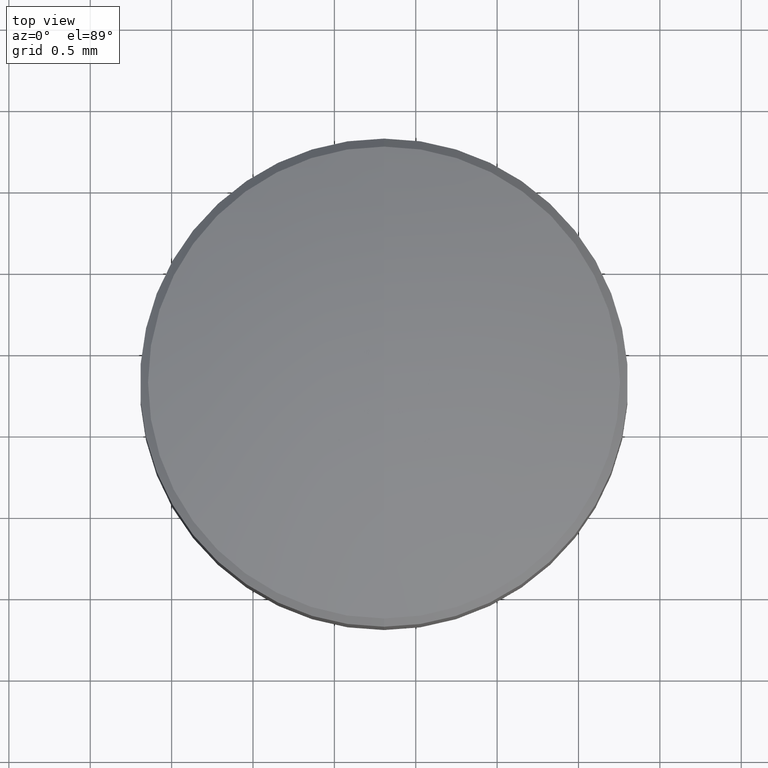
[diagram: clean part render]
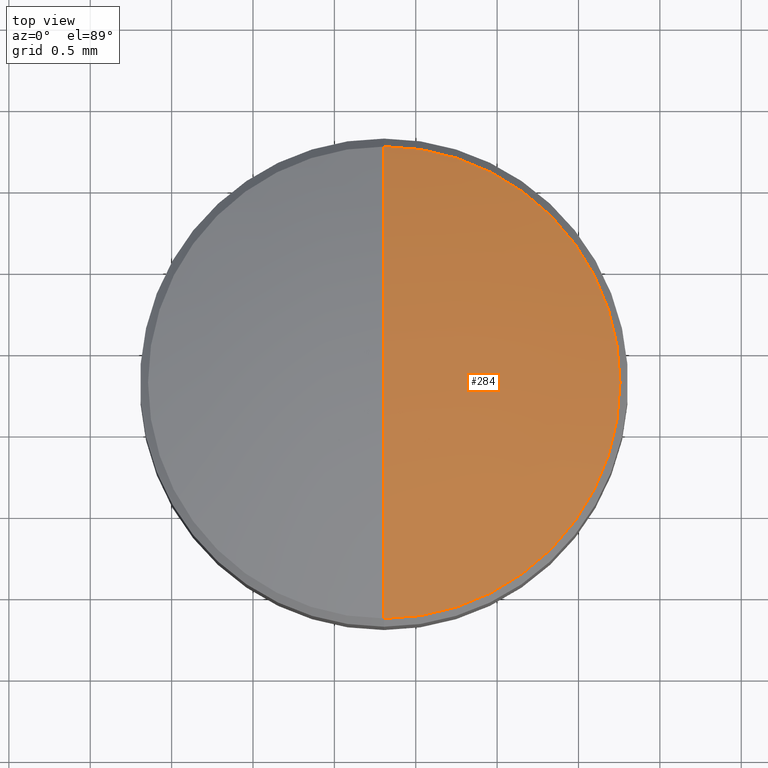
[diagram: same view with one face highlighted and labeled with its STEP entity id]
A machine part, top view. The second image highlights one B-rep face of the part: STEP entity #284.
In plain terms, the highlighted spherical surface has radius 4.651 mm.
Its self-contained STEP definition (entity closure, byte-faithful):
#8 = DIRECTION ( 'NONE',  ( 0.0000000000000000000, 1.000000000000000000, 1.398669755947758989E-16 ) ) ;
#17 = EDGE_LOOP ( 'NONE', ( #74, #31, #288 ) ) ;
#31 = ORIENTED_EDGE ( 'NONE', *, *, #57, .T. ) ;
#41 = EDGE_CURVE ( 'NONE', #237, #281, #159, .T. ) ;
#44 = DIRECTION ( 'NONE',  ( 1.000000000000000000, 1.224646799147353207E-16, 1.499759782661857608E-32 ) ) ;
#57 = EDGE_CURVE ( 'NONE', #237, #87, #93, .T. ) ;
#59 = DIRECTION ( 'NONE',  ( 0.0000000000000000000, 1.000000000000000000, 0.0000000000000000000 ) ) ;
#60 = CARTESIAN_POINT ( 'NONE',  ( 0.8048939134659998107, 1.311868098657955839, -1.259704012957080899 ) ) ;
#62 = DIRECTION ( 'NONE',  ( -0.0000000000000000000, 1.224646799147353207E-16, -1.000000000000000000 ) ) ;
#72 = AXIS2_PLACEMENT_3D ( 'NONE', #263, #44, #140 ) ;
#74 = ORIENTED_EDGE ( 'NONE', *, *, #41, .F. ) ;
#87 = VERTEX_POINT ( 'NONE', #144 ) ;
#93 = CIRCLE ( 'NONE', #72, 4.650999999999999801 ) ;
#133 = DIRECTION ( 'NONE',  ( 1.000000000000000000, 0.0000000000000000000, -0.0000000000000000000 ) ) ;
#140 = DIRECTION ( 'NONE',  ( -1.165558129956465865E-16, 1.000000000000000000, 0.0000000000000000000 ) ) ;
#144 = CARTESIAN_POINT ( 'NONE',  ( 0.8048939134660000327, -0.1381319013420453656, 3.159492859778958884 ) ) ;
#145 = FACE_OUTER_BOUND ( 'NONE', #17, .T. ) ;
#156 = DIRECTION ( 'NONE',  ( -1.000000000000000000, 0.0000000000000000000, 0.0000000000000000000 ) ) ;
#159 = CIRCLE ( 'NONE', #260, 4.650999999999999801 ) ;
#160 = DIRECTION ( 'NONE',  ( 0.0000000000000000000, 0.0000000000000000000, 1.000000000000000000 ) ) ;
#191 = SPHERICAL_SURFACE ( 'NONE', #206, 4.650999999999999801 ) ;
#206 = AXIS2_PLACEMENT_3D ( 'NONE', #60, #133, #8 ) ;
#225 = CARTESIAN_POINT ( 'NONE',  ( 0.8048939134659998107, 1.311868098657955617, 3.391295987042918458 ) ) ;
#237 = VERTEX_POINT ( 'NONE', #225 ) ;
#252 = CARTESIAN_POINT ( 'NONE',  ( 0.8048939134659998107, 2.761868098657956683, 3.159492859778958884 ) ) ;
#256 = CIRCLE ( 'NONE', #290, 1.450000000000001066 ) ;
#260 = AXIS2_PLACEMENT_3D ( 'NONE', #291, #156, #160 ) ;
#263 = CARTESIAN_POINT ( 'NONE',  ( 0.8048939134659998107, 1.311868098657955839, -1.259704012957080899 ) ) ;
#281 = VERTEX_POINT ( 'NONE', #252 ) ;
#283 = CARTESIAN_POINT ( 'NONE',  ( 0.8048939134659998107, 1.311868098657955617, 3.159492859778958884 ) ) ;
#284 = ADVANCED_FACE ( 'NONE', ( #145 ), #191, .T. ) ;
#288 = ORIENTED_EDGE ( 'NONE', *, *, #292, .F. ) ;
#290 = AXIS2_PLACEMENT_3D ( 'NONE', #283, #62, #59 ) ;
#291 = CARTESIAN_POINT ( 'NONE',  ( 0.8048939134659998107, 1.311868098657955839, -1.259704012957080899 ) ) ;
#292 = EDGE_CURVE ( 'NONE', #281, #87, #256, .T. ) ;